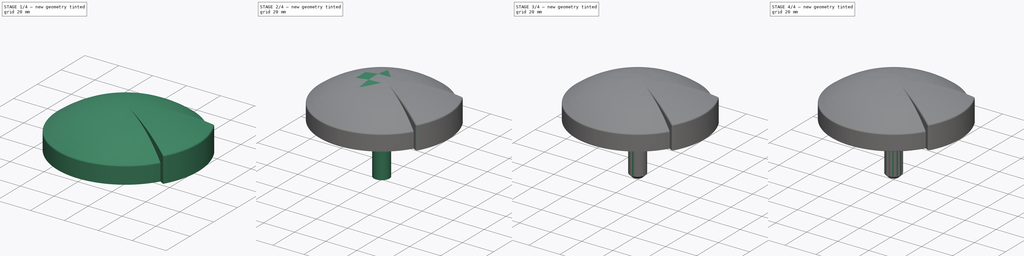
[diagram: build sequence overview — one tinted view per stage of 4, left to right]
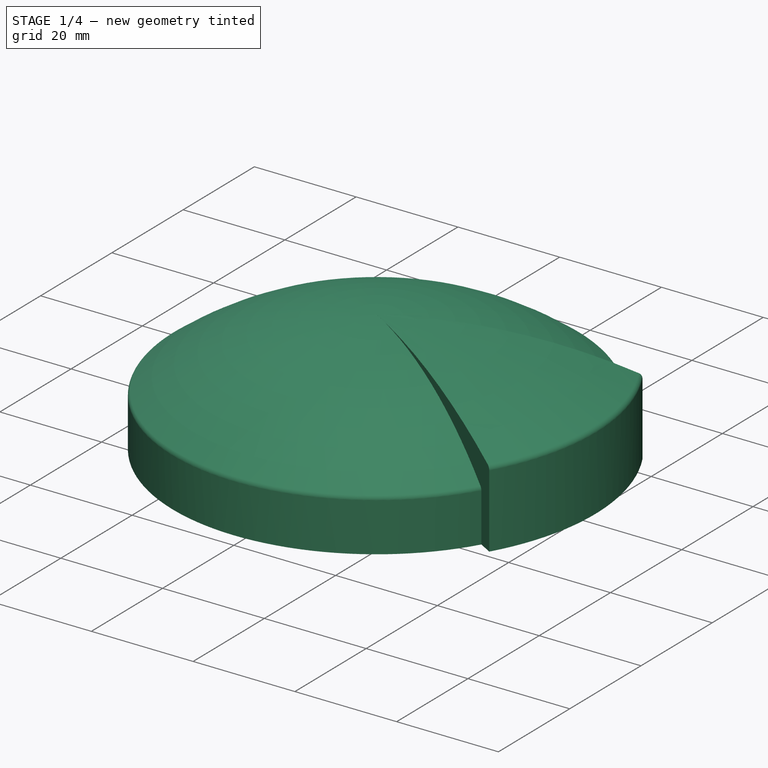
[diagram: stage 1 of 4 — iso view after this stage's code; geometry added in this stage tinted green]
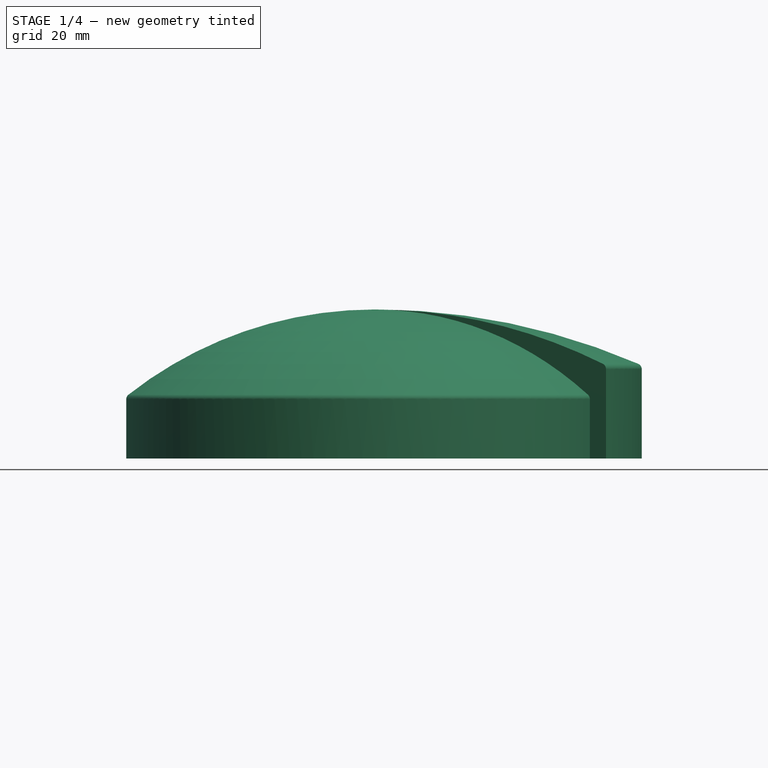
[diagram: stage 1 of 4 — front view after this stage's code; geometry added in this stage tinted green]
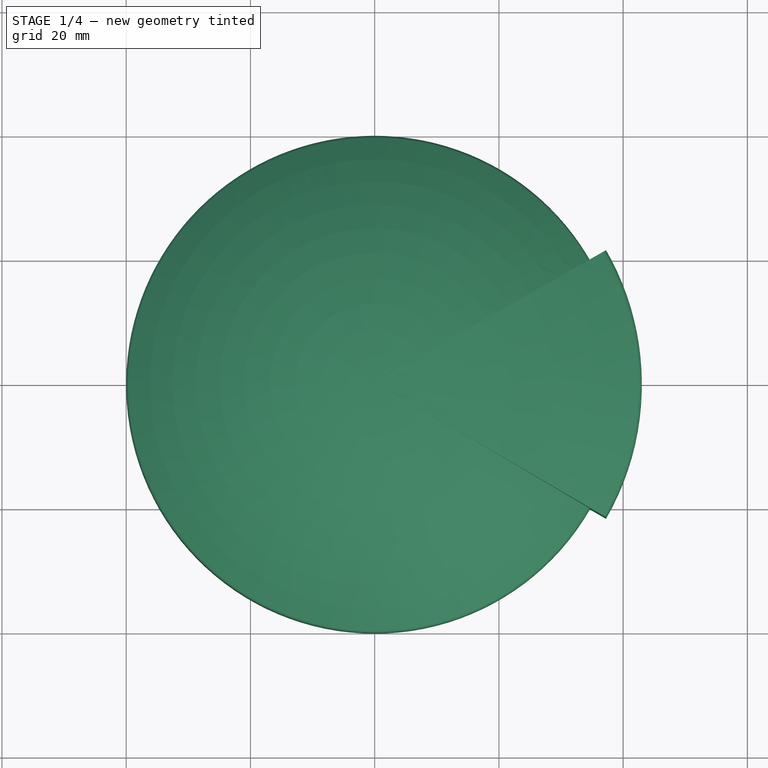
[diagram: stage 1 of 4 — top view after this stage's code; geometry added in this stage tinted green]
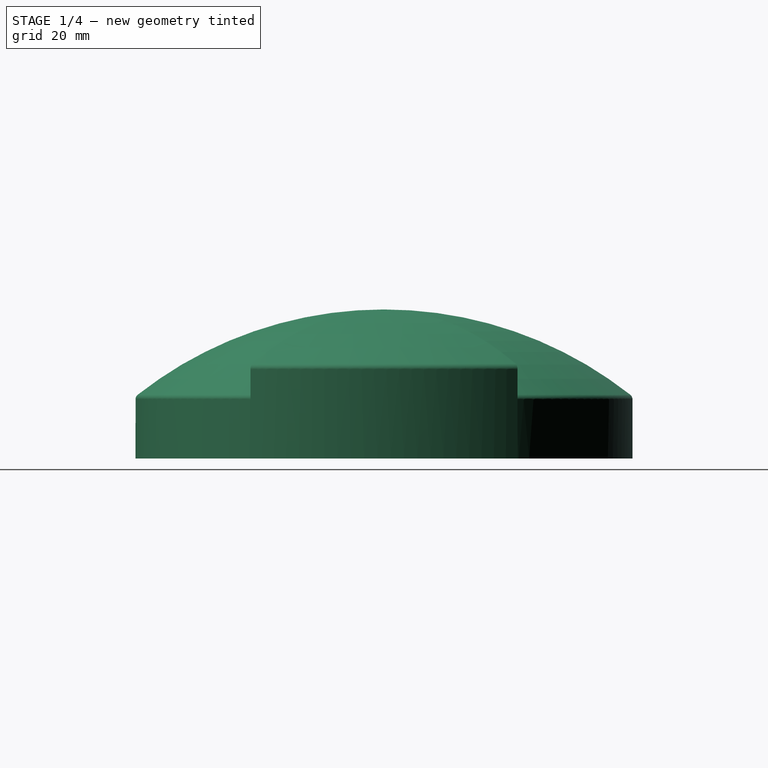
[diagram: stage 1 of 4 — right view after this stage's code; geometry added in this stage tinted green]
FCSTD DOCUMENT  (FreeCAD 1.0R39319 (Git))
Label: Badarmatur
License: All rights reserved
LicenseURL: https://en.wikipedia.org/wiki/All_rights_reserved
objects: Sketcher::SketchObject×5, PartDesign::Fillet×4, PartDesign::Revolution×3, PartDesign::Groove×1, PartDesign::Chamfer×1, PartDesign::Pocket×1, PartDesign::PolarPattern×1, PartDesign::Body×1
note: 43 computed .brp shape members not serialized (recipe doc carries the construction recipe); baked Part::Feature solids carry a one-line shape summary decoded from their .brp

FEATURE [Sketcher::SketchObject] Sketch
  ArcFitTolerance = 1e-06
  AttachmentSupport = -> [XZ_Plane]
  FullyConstrained = true
  MakeInternals = false
  MapMode = 5
  Placement = pos=(0,0,0) rot=(1,0,0;1.5708rad)
  sketch-geometry (4):
    g0: LineSegment StartX=3.9e-15 StartY=24 StartZ=0 EndX=3.9e-15 EndY=0 EndZ=0
    g1: LineSegment StartX=3.9e-15 StartY=0 StartZ=0 EndX=40 EndY=0 EndZ=0
    g2: LineSegment StartX=40 StartY=0 StartZ=0 EndX=40 EndY=10 EndZ=0
    g3: ArcOfCircle CenterX=0 CenterY=-40.1429 CenterZ=0 NormalX=0 NormalY=0 NormalZ=1 AngleXU=0 Radius=64.1429 StartAngle=0.897447 EndAngle=1.5708
  constraints (12):
    c: Coincident(g0,g1)
    c: Coincident(g1,g2)
    c: Horizontal(g1)
    c: Vertical(g0)
    c: Vertical(g2)
    c: Coincident(g0,g-1)
    c: DistanceX(g1,g1) = 40
    c: DistanceY(g2,g2) = 10
    c: DistanceY(g0,g0) = 24
    c: Coincident(g3,g2)
    c: Coincident(g0,g3)
    c: Perpendicular(g3,g0)
FEATURE [Sketcher::SketchObject] Sketch001
  ArcFitTolerance = 1e-06
  AttachmentSupport = -> [XZ_Plane]
  FullyConstrained = true
  MakeInternals = false
  MapMode = 5
  Placement = pos=(0,0,0) rot=(1,0,0;1.5708rad)
  sketch-geometry (4):
    g0: LineSegment StartX=43 StartY=15 StartZ=0 EndX=43 EndY=0 EndZ=0
    g1: LineSegment StartX=43 StartY=0 StartZ=0 EndX=0 EndY=0 EndZ=0
    g2: LineSegment StartX=0 StartY=0 StartZ=0 EndX=0 EndY=24 EndZ=0
    g3: ArcOfCircle CenterX=0 CenterY=-83.2222 CenterZ=0 NormalX=0 NormalY=0 NormalZ=1 AngleXU=0 Radius=107.222 StartAngle=1.15815 EndAngle=1.5708
  constraints (12):
    c: Coincident(g0,g1)
    c: Horizontal(g1)
    c: Coincident(g1,g2)
    c: Coincident(g1,g-1)
    c: Vertical(g0)
    c: Vertical(g2)
    c: DistanceX(g1,g1) = 43
    c: DistanceY(g2,g2) = 24
    c: DistanceY(g0,g0) = 15
    c: Coincident(g0,g3)
    c: Coincident(g2,g3)
    c: Perpendicular(g3,g2)
FEATURE [PartDesign::Revolution] Revolution
  Angle = 360
  Angle2 = 60
  Axis = (0,2e-16,1)
  Base = (0,0,0)
  Placement = pos=(0,0,0) rot=(1,0,0;1.5708rad)
  Profile = -> Sketch
  ReferenceAxis = -> Sketch [V_Axis]
  Refine = true
  Reversed = true
  Suppressed = false
  Type = 0
FEATURE [PartDesign::Revolution] Revolution001
  Angle = 60
  Angle2 = 60
  Axis = (0,2e-16,1)
  Base = (0,0,0)
  BaseFeature = -> Revolution
  Midplane = true
  Placement = pos=(0,0,0) rot=(1,0,0;1.5708rad)
  Profile = -> Sketch001
  ReferenceAxis = -> Sketch001 [V_Axis]
  Refine = true
  Reversed = true
  Suppressed = false
  Type = 0
FEATURE [PartDesign::Fillet] Fillet
  Base = -> Revolution001 [Edge15,Edge1]
  BaseFeature = -> Revolution001
  Placement = pos=(0,0,0) rot=(1,0,0;1.5708rad)
  Radius = 1
  Refine = true
  SupportTransform = false
  Suppressed = false
  UseAllEdges = false
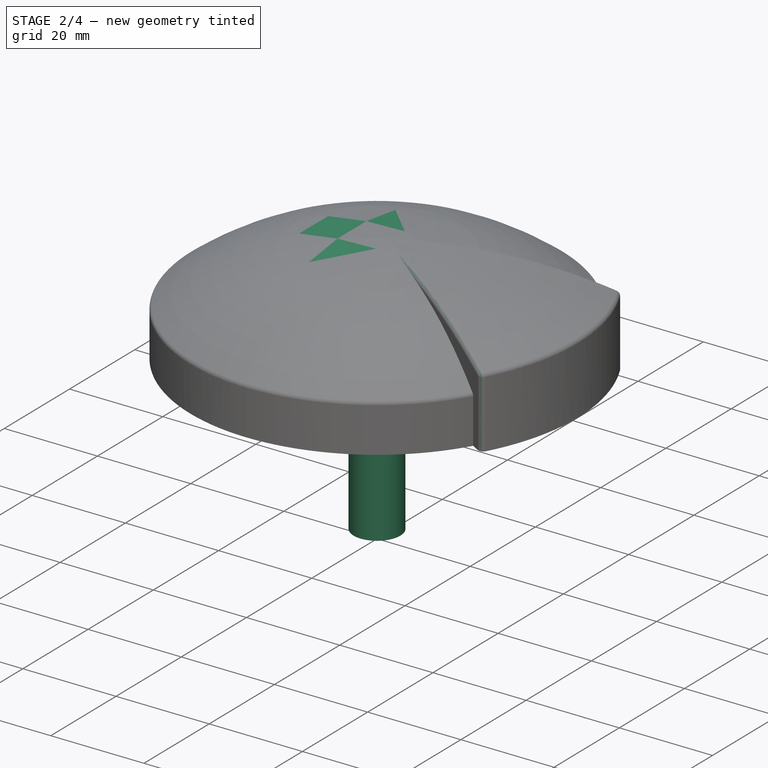
[diagram: stage 2 of 4 — iso view after this stage's code; geometry added in this stage tinted green]
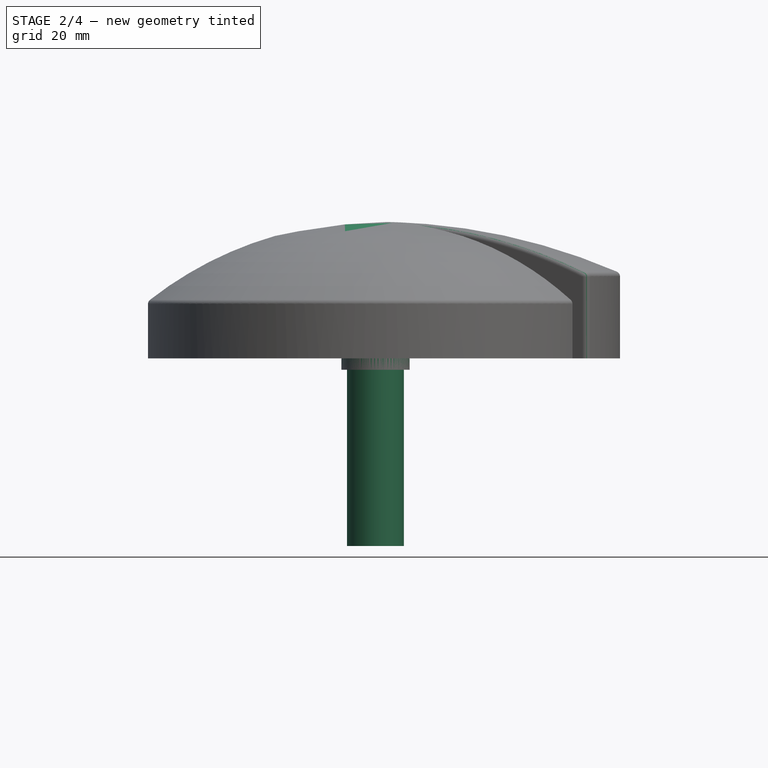
[diagram: stage 2 of 4 — front view after this stage's code; geometry added in this stage tinted green]
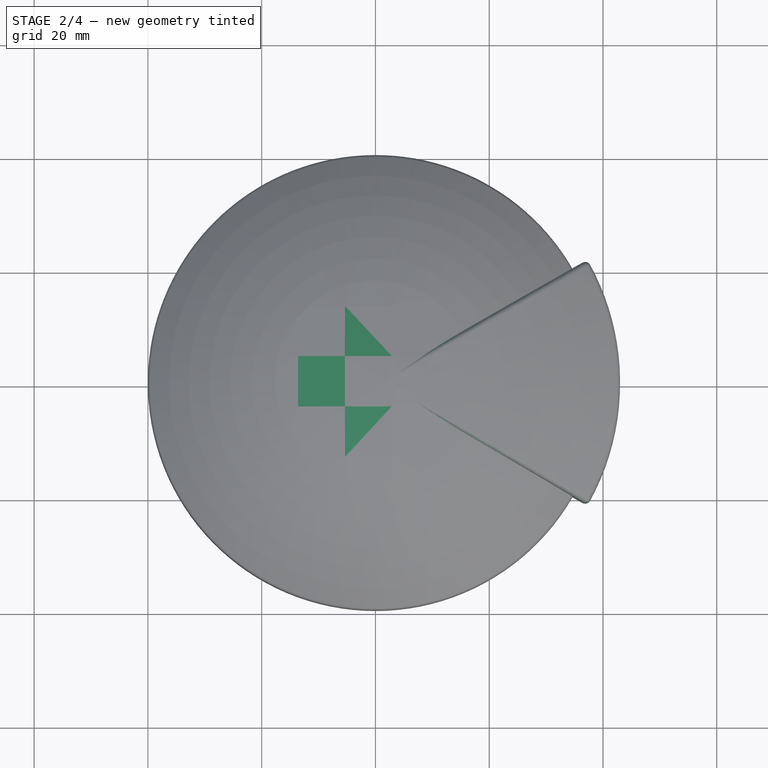
[diagram: stage 2 of 4 — top view after this stage's code; geometry added in this stage tinted green]
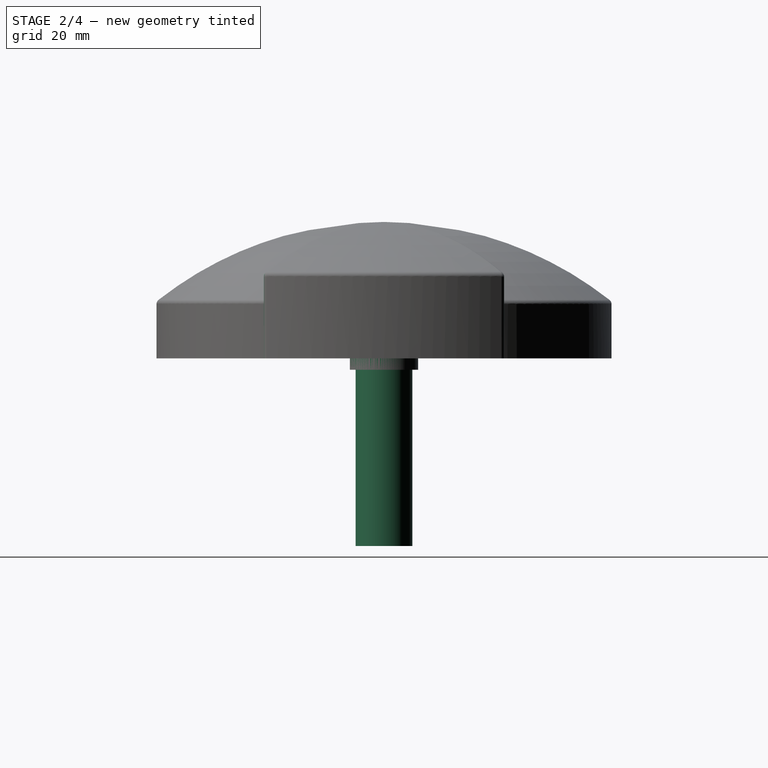
[diagram: stage 2 of 4 — right view after this stage's code; geometry added in this stage tinted green]
FEATURE [PartDesign::Fillet] Fillet001
  Base = -> Fillet [Edge1,Edge4]
  BaseFeature = -> Fillet
  Placement = pos=(0,0,0) rot=(1,0,0;1.5708rad)
  Radius = 1
  Refine = true
  SupportTransform = false
  Suppressed = false
  UseAllEdges = false
FEATURE [Sketcher::SketchObject] Sketch002
  ArcFitTolerance = 1e-06
  AttachmentSupport = -> [XZ_Plane]
  FullyConstrained = true
  MakeInternals = false
  MapMode = 5
  Placement = pos=(0,0,0) rot=(1,0,0;1.5708rad)
  expr: Constraints[106] = Sketch.Constraints[6]
  expr: Constraints[107] = Sketch.Constraints[7]
  expr: Constraints[108] = Sketch.Constraints[8]
  expr: Constraints[17] = Sketch.Constraints[6]
  expr: Constraints[18] = Sketch.Constraints[7]
  expr: Constraints[27] = Sketch.Constraints[6]
  expr: Constraints[28] = Sketch.Constraints[7]
  expr: Constraints[37] = Sketch.Constraints[6]
  expr: Constraints[38] = Sketch.Constraints[7]
  expr: Constraints[48] = Sketch.Constraints[6]
  expr: Constraints[49] = Sketch.Constraints[7]
  expr: Constraints[58] = Sketch.Constraints[6]
  expr: Constraints[59] = Sketch.Constraints[7]
  expr: Constraints[60] = Sketch.Constraints[8]
  expr: Constraints[6] = Sketch.Constraints[6]
  expr: Constraints[70] = Sketch.Constraints[6]
  expr: Constraints[71] = Sketch.Constraints[7]
  expr: Constraints[72] = Sketch.Constraints[8]
  expr: Constraints[7] = Sketch.Constraints[7]
  expr: Constraints[82] = Sketch.Constraints[6]
  expr: Constraints[83] = Sketch.Constraints[7]
  expr: Constraints[84] = Sketch.Constraints[8]
  expr: Constraints[8] = Sketch.Constraints[8]
  expr: Constraints[94] = Sketch.Constraints[6]
  expr: Constraints[95] = Sketch.Constraints[7]
  expr: Constraints[96] = Sketch.Constraints[8]
  sketch-geometry (46):
    g0: LineSegment [constr] StartX=0 StartY=24 StartZ=0 EndX=0 EndY=0 EndZ=0
    g1: LineSegment [constr] StartX=0 StartY=0 StartZ=0 EndX=40 EndY=0 EndZ=0
    g2: LineSegment [constr] StartX=40 StartY=0 StartZ=0 EndX=40 EndY=10 EndZ=0
    g3: ArcOfCircle [constr] CenterX=0 CenterY=-40.1429 CenterZ=0 NormalX=0 NormalY=0 NormalZ=1 AngleXU=0 Radius=64.1429 StartAngle=0.897447 EndAngle=1.5708
    g4: LineSegment [constr] StartX=3.9e-15 StartY=24 StartZ=0 EndX=3.9e-15 EndY=0 EndZ=0
    g5: LineSegment [constr] StartX=3.9e-15 StartY=0 StartZ=0 EndX=40 EndY=0 EndZ=0
    g6: LineSegment [constr] StartX=40 StartY=0 StartZ=0 EndX=40 EndY=10 EndZ=0
    g7: ArcOfCircle [constr] CenterX=0 CenterY=-40.1429 CenterZ=0 NormalX=0 NormalY=0 NormalZ=1 AngleXU=0 Radius=64.1429 StartAngle=0.897447 EndAngle=1.5708
    g8: LineSegment [constr] StartX=3.9e-15 StartY=24 StartZ=0 EndX=3.9e-15 EndY=0 EndZ=0
    g9: LineSegment [constr] StartX=3.9e-15 StartY=0 StartZ=0 EndX=40 EndY=0 EndZ=0
    g10: LineSegment [constr] StartX=40 StartY=0 StartZ=0 EndX=40 EndY=10 EndZ=0
    g11: ArcOfCircle [constr] CenterX=0 CenterY=-40.1429 CenterZ=0 NormalX=0 NormalY=0 NormalZ=1 AngleXU=0 Radius=64.1429 StartAngle=0.897447 EndAngle=1.5708
    g12: LineSegment [constr] StartX=3.9e-15 StartY=24 StartZ=0 EndX=3.9e-15 EndY=0 EndZ=0
    g13: LineSegment [constr] StartX=3.9e-15 StartY=0 StartZ=0 EndX=40 EndY=0 EndZ=0
    g14: LineSegment [constr] StartX=40 StartY=0 StartZ=0 EndX=40 EndY=10 EndZ=0
    g15: ArcOfCircle [constr] CenterX=0 CenterY=-40.1429 CenterZ=0 NormalX=0 NormalY=0 NormalZ=1 AngleXU=0 Radius=64.1429 StartAngle=0.897447 EndAngle=1.5708
    g16: LineSegment [constr] StartX=0 StartY=24 StartZ=0 EndX=0 EndY=0 EndZ=0
    g17: LineSegment [constr] StartX=0 StartY=0 StartZ=0 EndX=40 EndY=0 EndZ=0
    g18: LineSegment [constr] StartX=40 StartY=0 StartZ=0 EndX=40 EndY=10 EndZ=0
    g19: ArcOfCircle [constr] CenterX=0 CenterY=-40.1429 CenterZ=0 NormalX=0 NormalY=0 NormalZ=1 AngleXU=0 Radius=64.1429 StartAngle=0.897447 EndAngle=1.5708
    g20: LineSegment [constr] StartX=3.9e-15 StartY=24 StartZ=0 EndX=3.9e-15 EndY=0 EndZ=0
    g21: LineSegment [constr] StartX=3.9e-15 StartY=0 StartZ=0 EndX=40 EndY=0 EndZ=0
    g22: LineSegment [constr] StartX=40 StartY=0 StartZ=0 EndX=40 EndY=10 EndZ=0
    g23: ArcOfCircle [constr] CenterX=0 CenterY=-40.1429 CenterZ=0 NormalX=0 NormalY=0 NormalZ=1 AngleXU=0 Radius=64.1429 StartAngle=0.897447 EndAngle=1.5708
    g24: LineSegment [constr] StartX=3.9e-15 StartY=24 StartZ=0 EndX=3.9e-15 EndY=0 EndZ=0
    g25: LineSegment [constr] StartX=3.9e-15 StartY=0 StartZ=0 EndX=40 EndY=0 EndZ=0
    g26: LineSegment [constr] StartX=40 StartY=0 StartZ=0 EndX=40 EndY=10 EndZ=0
    g27: ArcOfCircle [constr] CenterX=0 CenterY=-40.1429 CenterZ=0 NormalX=0 NormalY=0 NormalZ=1 AngleXU=0 Radius=64.1429 StartAngle=0.897447 EndAngle=1.5708
    g28: LineSegment [constr] StartX=3.9e-15 StartY=24 StartZ=0 EndX=3.9e-15 EndY=0 EndZ=0
    g29: LineSegment [constr] StartX=3.9e-15 StartY=0 StartZ=0 EndX=40 EndY=0 EndZ=0
    g30: LineSegment [constr] StartX=40 StartY=0 StartZ=0 EndX=40 EndY=10 EndZ=0
    g31: ArcOfCircle [constr] CenterX=0 CenterY=-40.1429 CenterZ=0 NormalX=0 NormalY=0 NormalZ=1 AngleXU=0 Radius=64.1429 StartAngle=0.897447 EndAngle=1.5708
    g32: LineSegment [constr] StartX=3.9e-15 StartY=24 StartZ=0 EndX=3.9e-15 EndY=0 EndZ=0
    g33: LineSegment [constr] StartX=3.9e-15 StartY=0 StartZ=0 EndX=40 EndY=0 EndZ=0
    g34: LineSegment [constr] StartX=40 StartY=0 StartZ=0 EndX=40 EndY=10 EndZ=0
    g35: ArcOfCircle [constr] CenterX=0 CenterY=-40.1429 CenterZ=0 NormalX=0 NormalY=0 NormalZ=1 AngleXU=0 Radius=64.1429 StartAngle=0.897447 EndAngle=1.5708
    g36: LineSegment [constr] StartX=3.9e-15 StartY=24 StartZ=0 EndX=3.9e-15 EndY=0 EndZ=0
    g37: LineSegment [constr] StartX=3.9e-15 StartY=0 StartZ=0 EndX=40 EndY=0 EndZ=0
    g38: LineSegment [constr] StartX=40 StartY=0 StartZ=0 EndX=40 EndY=10 EndZ=0
    g39: ArcOfCircle [constr] CenterX=0 CenterY=-40.1429 CenterZ=0 NormalX=0 NormalY=0 NormalZ=1 AngleXU=0 Radius=64.1429 StartAngle=0.897447 EndAngle=1.5708
    g40: LineSegment StartX=0 StartY=0 StartZ=0 EndX=-7.3e-15 EndY=20.5 EndZ=0
    g41: ArcOfCircle [constr] CenterX=0 CenterY=-40.1429 CenterZ=0 NormalX=0 NormalY=0 NormalZ=1 AngleXU=0 Radius=60.6429 StartAngle=0.885096 EndAngle=1.5708
    g42: LineSegment [constr] StartX=38.4 StartY=6.79323 StartZ=0 EndX=38.4 EndY=0 EndZ=0
    g43: LineSegment StartX=38.4 StartY=0 StartZ=0 EndX=0 EndY=0 EndZ=0
    g44: LineSegment StartX=38.4 StartY=0 StartZ=0 EndX=22.0513 EndY=16.3487 EndZ=0
    g45: ArcOfCircle CenterX=2.4e-15 CenterY=-40.1429 CenterZ=0 NormalX=0 NormalY=0 NormalZ=1 AngleXU=0 Radius=60.6429 StartAngle=1.19864 EndAngle=1.5708
  constraints (132):
    c: Coincident(g0,g1)
    c: Coincident(g1,g2)
    c: Horizontal(g1)
    c: Vertical(g0)
    c: Vertical(g2)
    c: Coincident(g0,g-1)
    c: DistanceX(g1,g1) = 40
    c: DistanceY(g2,g2) = 10
    c: DistanceY(g0,g0) = 24
    c: Coincident(g3,g2)
    c: Coincident(g0,g3)
    c: Coincident(g4,g5)
    c: Coincident(g5,g6)
    c: Horizontal(g5)
    c: Vertical(g4)
    c: Vertical(g6)
    c: Coincident(g4,g-1)
    c: DistanceX(g5,g5) = 40
    c: DistanceY(g6,g6) = 10
    c: Coincident(g7,g6)
    c: Coincident(g4,g7)
    c: Coincident(g8,g9)
    c: Coincident(g9,g10)
    c: Horizontal(g9)
    c: Vertical(g8)
    c: Vertical(g10)
    c: Coincident(g8,g-1)
    c: DistanceX(g9,g9) = 40
    c: DistanceY(g10,g10) = 10
    c: Coincident(g11,g10)
    c: Coincident(g8,g11)
    c: Coincident(g12,g13)
    c: Coincident(g13,g14)
    c: Horizontal(g13)
    c: Vertical(g12)
    c: Vertical(g14)
    c: Coincident(g12,g-1)
    c: DistanceX(g13,g13) = 40
    c: DistanceY(g14,g14) = 10
    c: Coincident(g15,g14)
    c: Coincident(g12,g15)
    c: Perpendicular(g15,g12)
    c: Coincident(g16,g17)
    c: Coincident(g17,g18)
    c: Horizontal(g17)
    c: Vertical(g16)
    c: Vertical(g18)
    c: Coincident(g16,g-1)
    c: DistanceX(g17,g17) = 40
    c: DistanceY(g18,g18) = 10
    c: Coincident(g19,g18)
    c: Coincident(g16,g19)
    c: Coincident(g20,g21)
    c: Coincident(g21,g22)
    c: Horizontal(g21)
    c: Vertical(g20)
    c: Vertical(g22)
    c: Coincident(g20,g-1)
    c: DistanceX(g21,g21) = 40
    c: DistanceY(g22,g22) = 10
    c: DistanceY(g20,g20) = 24
    c: Coincident(g23,g22)
    c: Coincident(g20,g23)
    c: Perpendicular(g23,g20)
    c: Coincident(g24,g25)
    c: Coincident(g25,g26)
    c: Horizontal(g25)
    c: Vertical(g24)
    c: Vertical(g26)
    c: Coincident(g24,g-1)
    c: DistanceX(g25,g25) = 40
    c: DistanceY(g26,g26) = 10
    c: DistanceY(g24,g24) = 24
    c: Coincident(g27,g26)
    c: Coincident(g24,g27)
    c: Perpendicular(g27,g24)
    c: Coincident(g28,g29)
    c: Coincident(g29,g30)
    c: Horizontal(g29)
    c: Vertical(g28)
    c: Vertical(g30)
    c: Coincident(g28,g-1)
    c: DistanceX(g29,g29) = 40
    c: DistanceY(g30,g30) = 10
    c: DistanceY(g28,g28) = 24
    c: Coincident(g31,g30)
    c: Coincident(g28,g31)
    c: Perpendicular(g31,g28)
    c: Coincident(g32,g33)
    c: Coincident(g33,g34)
    c: Horizontal(g33)
    c: Vertical(g32)
    c: Vertical(g34)
    c: Coincident(g32,g-1)
    c: DistanceX(g33,g33) = 40
    c: DistanceY(g34,g34) = 10
    c: DistanceY(g32,g32) = 24
    c: Coincident(g35,g34)
    c: Coincident(g32,g35)
    c: Perpendicular(g35,g32)
    c: Coincident(g36,g37)
    c: Coincident(g37,g38)
    c: Horizontal(g37)
    c: Vertical(g36)
    c: Vertical(g38)
    c: Coincident(g36,g-1)
    c: DistanceX(g37,g37) = 40
    c: DistanceY(g38,g38) = 10
    c: DistanceY(g36,g36) = 24
    c: Coincident(g39,g38)
    c: Coincident(g36,g39)
    c: Perpendicular(g39,g36)
    c: Perpendicular(g40,g41) = 1.5708
    c: Coincident(g41,g42)
    c: Vertical(g42)
    c: Coincident(g42,g43)
    c: Coincident(g43,g40)
    c: Horizontal(g43)
    c: Coincident(g0,g40)
    c: Distance(g40,g0) = 3.5
    c: Distance(g2,g42) = 1.6
    c: Coincident(g3,g7)
    c: Coincident(g3,g11)
    c: Coincident(g3,g15)
    c: Coincident(g3,g19)
    c: Coincident(g3,g41)
    c: Coincident(g44,g42)
    c: PointOnObject(g44,g41)
    c: Angle(g44,g-1) = 0.785398
    c: Coincident(g40,g45)
    c: Coincident(g44,g45)
    c: Equal(g41,g45)
FEATURE [PartDesign::Groove] Groove
  Angle = 360
  Angle2 = 60
  Axis = (0,2e-16,1)
  Base = (0,0,0)
  BaseFeature = -> Fillet001
  Placement = pos=(0,0,0) rot=(1,0,0;1.5708rad)
  Profile = -> Sketch002
  ReferenceAxis = -> Sketch002 [V_Axis]
  Refine = true
  Suppressed = false
  Type = 0
FEATURE [Sketcher::SketchObject] Sketch003
  ArcFitTolerance = 1e-06
  AttachmentSupport = -> [XZ_Plane]
  ExternalGeometry = -> [Groove]
  FullyConstrained = true
  MakeInternals = false
  MapMode = 5
  Placement = pos=(0,0,0) rot=(1,0,0;1.5708rad)
  sketch-geometry (12):
    g0: LineSegment StartX=6 StartY=20.5 StartZ=0 EndX=6 EndY=7 EndZ=0
    g1: LineSegment StartX=6 StartY=7 StartZ=0 EndX=5 EndY=7 EndZ=0
    g2: LineSegment StartX=5 StartY=7 StartZ=0 EndX=5 EndY=4 EndZ=0
    g3: LineSegment StartX=5 StartY=4 StartZ=0 EndX=6 EndY=4 EndZ=0
    g4: LineSegment StartX=6 StartY=4 StartZ=0 EndX=6 EndY=-2 EndZ=0
    g5: LineSegment StartX=6 StartY=-2 StartZ=0 EndX=5 EndY=-2 EndZ=0
    g6: LineSegment StartX=5 StartY=-2 StartZ=0 EndX=5 EndY=-33 EndZ=0
    g7: LineSegment StartX=5 StartY=-33 StartZ=0 EndX=0 EndY=-33 EndZ=0
    g8: LineSegment StartX=0 StartY=-33 StartZ=0 EndX=0 EndY=20.5 EndZ=0
    g9: LineSegment StartX=0 StartY=20.5 StartZ=0 EndX=6 EndY=20.5 EndZ=0
    g10: GeomPoint X=-5 Y=-33 Z=0
    g11: GeomPoint X=-6 Y=-2 Z=0
  constraints (31):
    c: Vertical(g0)
    c: Coincident(g0,g1)
    c: Horizontal(g1)
    c: Coincident(g1,g2)
    c: Vertical(g2)
    c: Coincident(g2,g3)
    c: Horizontal(g3)
    c: Coincident(g3,g4)
    c: Coincident(g4,g5)
    c: Coincident(g5,g6)
    c: Vertical(g6)
    c: Coincident(g7,g8)
    c: Coincident(g8,g9)
    c: Coincident(g9,g0)
    c: Horizontal(g9)
    c: Vertical(g4)
    c: Vertical(g8)
    c: Horizontal(g7)
    c: Horizontal(g5)
    c: DistanceY(g7,g-1) = 33
    c: Coincident(g6,g7)
    c: Distance(g6,g6) = 31
    c: Distance(g4,g4) = 6
    c: Symmetric(g11,g4,g-2)
    c: Symmetric(g10,g6,g-2)
    c: Distance(g10,g6) = 10
    c: Distance(g11,g4) = 12
    c: PointOnObject(g2,g6)
    c: PointOnObject(g0,g4)
    c: DistanceY(g2,g2) = 3
    c: Coincident(g8,g-3)
FEATURE [PartDesign::Revolution] Revolution002
  Angle = 360
  Angle2 = 60
  Axis = (0,2e-16,1)
  Base = (0,0,0)
  BaseFeature = -> Groove
  Placement = pos=(0,0,0) rot=(1,0,0;1.5708rad)
  Profile = -> Sketch003
  ReferenceAxis = -> Sketch003 [V_Axis]
  Refine = true
  Reversed = true
  Suppressed = false
  Type = 0
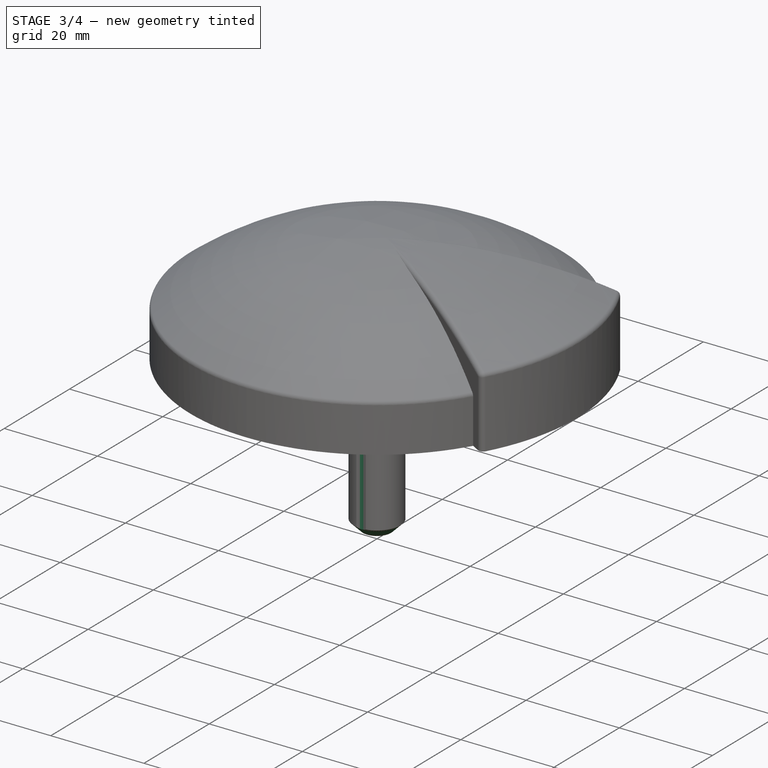
[diagram: stage 3 of 4 — iso view after this stage's code; geometry added in this stage tinted green]
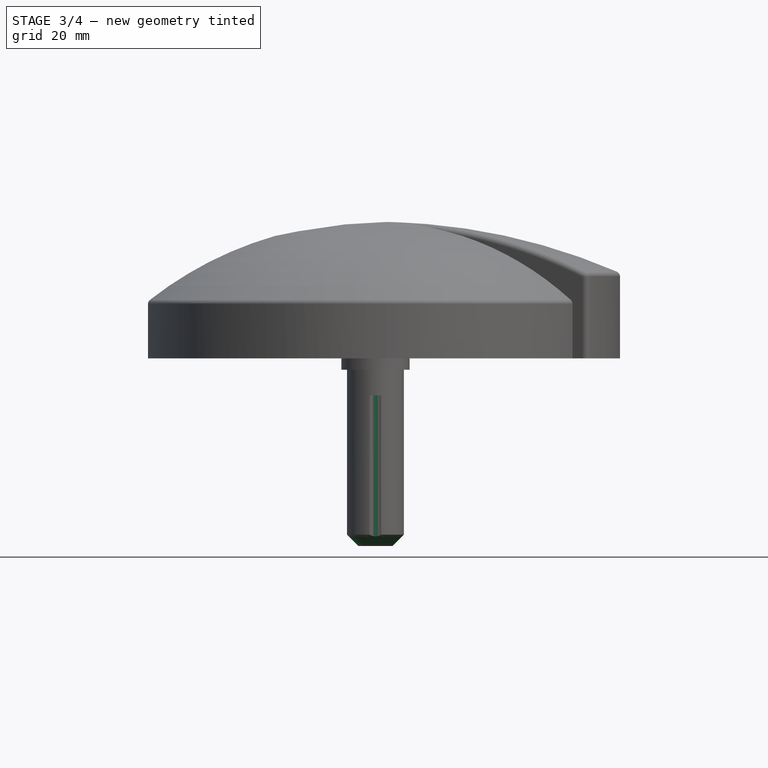
[diagram: stage 3 of 4 — front view after this stage's code; geometry added in this stage tinted green]
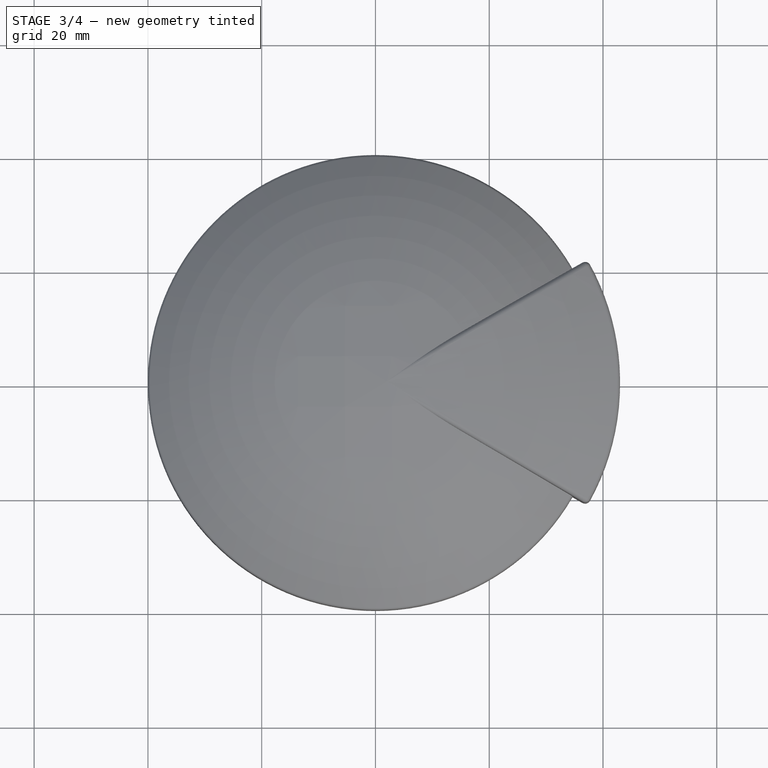
[diagram: stage 3 of 4 — top view after this stage's code; geometry added in this stage tinted green]
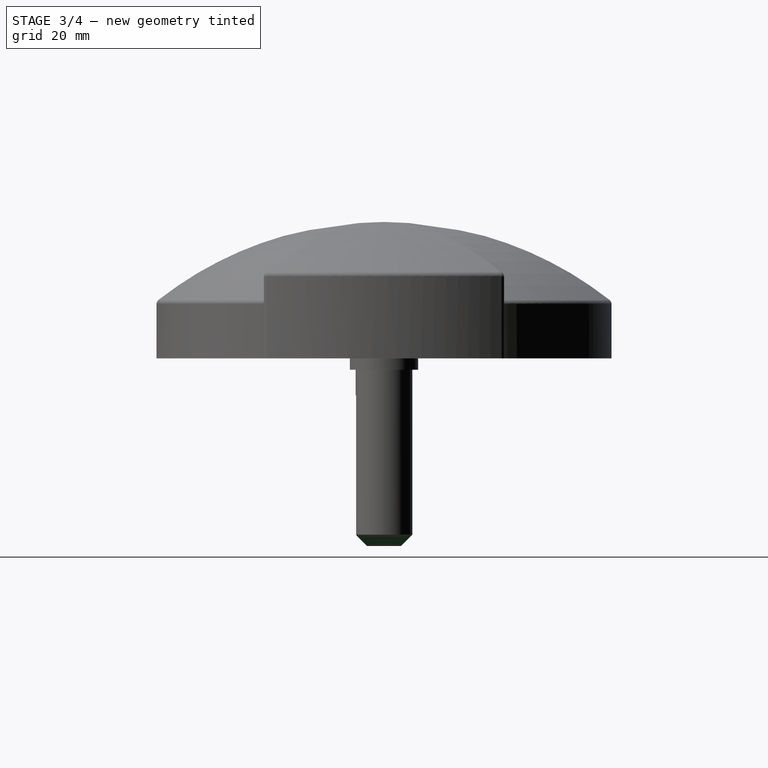
[diagram: stage 3 of 4 — right view after this stage's code; geometry added in this stage tinted green]
FEATURE [PartDesign::Chamfer] Chamfer
  Angle = 45
  Base = -> Revolution002 [Edge50]
  BaseFeature = -> Revolution002
  ChamferType = 0
  FlipDirection = false
  Placement = pos=(0,0,0) rot=(1,0,0;1.5708rad)
  Refine = true
  Size = 2
  Size2 = 1
  SupportTransform = false
  Suppressed = false
  UseAllEdges = false
FEATURE [Sketcher::SketchObject] Sketch004
  ArcFitTolerance = 1e-06
  AttachmentSupport = -> [Chamfer]
  ExternalGeometry = -> [Chamfer]
  FullyConstrained = true
  MakeInternals = false
  MapMode = 5
  Placement = pos=(0,-7.3e-15,-33) rot=(1,0,0;3.14159rad)
  sketch-geometry (4):
    g0: Circle CenterX=0 CenterY=7.31231 CenterZ=0 NormalX=0 NormalY=0 NormalZ=1 AngleXU=0 Radius=2.61231
    g1: LineSegment [constr] StartX=-1.21548 StartY=5 StartZ=0 EndX=1.21548 EndY=5 EndZ=0
    g2: LineSegment [constr] StartX=-1e-16 StartY=4.7 StartZ=0 EndX=-1e-16 EndY=5 EndZ=0
    g3: LineSegment [constr] StartX=-1 StartY=4.89898 StartZ=0 EndX=1 EndY=4.89898 EndZ=0
  constraints (14):
    c: PointOnObject(g0,g-2)
    c: PointOnObject(g1,g0)
    c: PointOnObject(g1,g0)
    c: Horizontal(g1)
    c: PointOnObject(g2,g0)
    c: Symmetric(g1,g1,g2)
    c: Vertical(g2)
    c: PointOnObject(g2,g-3)
    c: DistanceY(g2,g2) = 0.3
    c: PointOnObject(g3,g0)
    c: PointOnObject(g3,g0)
    c: Horizontal(g3)
    c: PointOnObject(g3,g-3)
    c: DistanceX(g3,g3) = 2
FEATURE [PartDesign::Pocket] Pocket
  BaseFeature = -> Chamfer
  Direction = (0,0,1)
  Length = 26.5
  Length2 = 5
  Placement = pos=(0,0,0) rot=(1,0,0;1.5708rad)
  Profile = -> Sketch004
  ReferenceAxis = -> Sketch004 [N_Axis]
  Refine = true
  Suppressed = false
  Type = 0
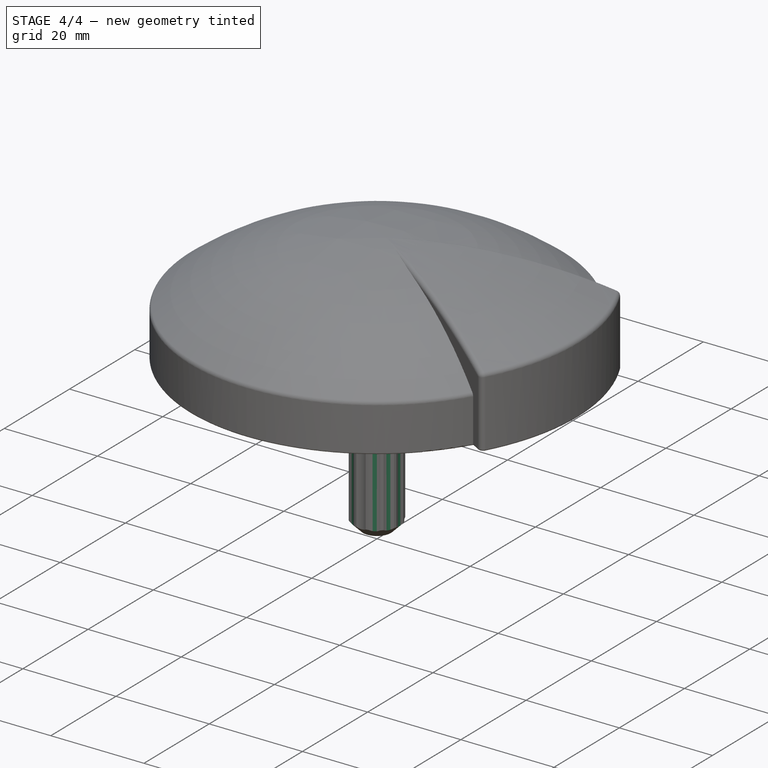
[diagram: stage 4 of 4 — iso view after this stage's code; geometry added in this stage tinted green]
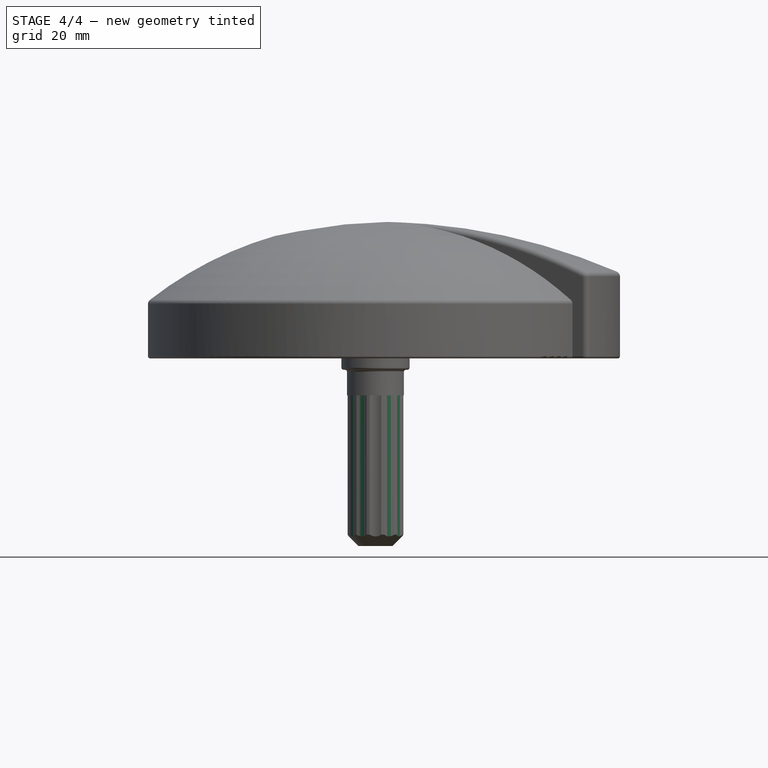
[diagram: stage 4 of 4 — front view after this stage's code; geometry added in this stage tinted green]
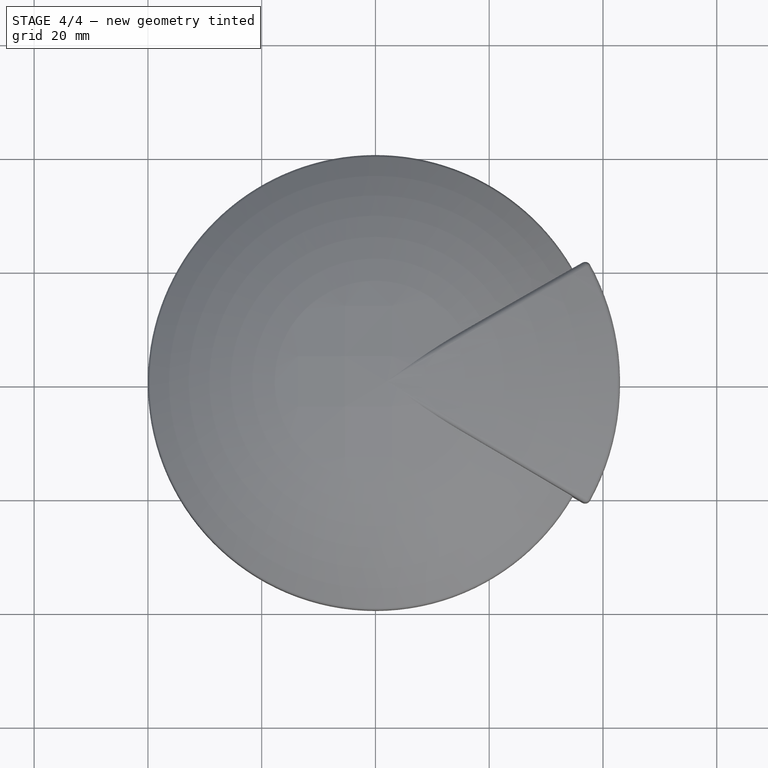
[diagram: stage 4 of 4 — top view after this stage's code; geometry added in this stage tinted green]
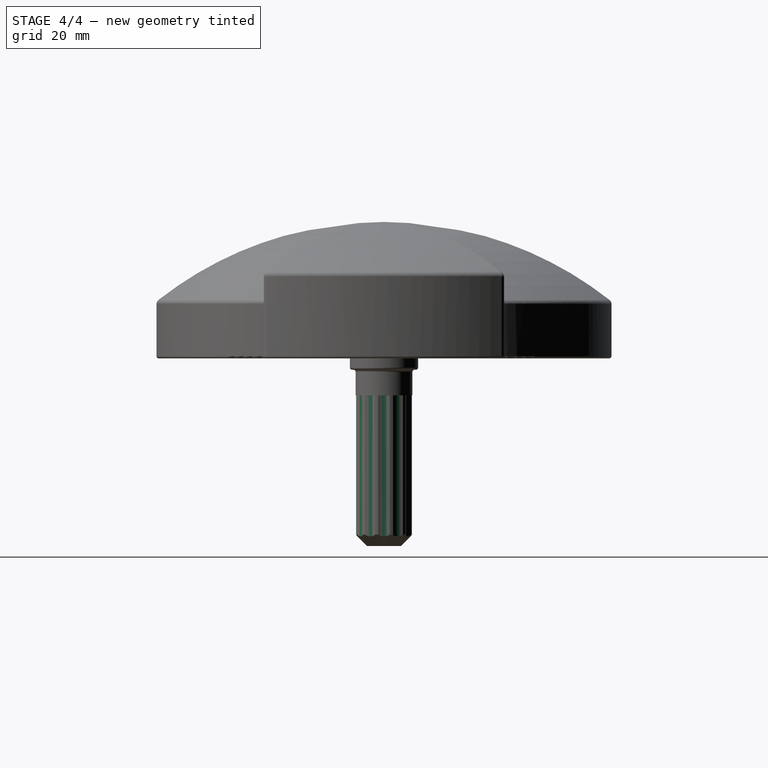
[diagram: stage 4 of 4 — right view after this stage's code; geometry added in this stage tinted green]
FEATURE [PartDesign::PolarPattern] PolarPattern
  Angle = 360
  Axis = -> Sketch004 [N_Axis]
  BaseFeature = -> Pocket
  Mode = 0
  Occurrences = 12
  Offset = 120
  Originals = -> [Pocket]
  Placement = pos=(0,0,0) rot=(1,0,0;1.5708rad)
  Refine = true
  Suppressed = false
  TransformMode = 0
FEATURE [PartDesign::Fillet] Fillet002
  Base = -> PolarPattern [Edge86]
  BaseFeature = -> PolarPattern
  Placement = pos=(0,0,0) rot=(1,0,0;1.5708rad)
  Radius = 5
  Refine = true
  SupportTransform = false
  Suppressed = false
  UseAllEdges = false
FEATURE [PartDesign::Fillet] Fillet003
  Base = -> Fillet002 [Face5,Face9,Edge38,Edge3,Face8]
  BaseFeature = -> Fillet002
  Placement = pos=(0,0,0) rot=(1,0,0;1.5708rad)
  Radius = 0.4
  Refine = true
  SupportTransform = false
  Suppressed = false
  UseAllEdges = false
FEATURE [PartDesign::Body] Body  label="Körper"
  AllowCompound = false
  Group = -> [Sketch,Sketch001,Revolution,Revolution001,Fillet,Fillet001,Sketch002,Groove,Sketch003,Revolution002,Chamfer,Sketch004,Pocket,PolarPattern,Fillet002,Fillet003]
  Origin = -> Origin
  Tip = -> Fillet003
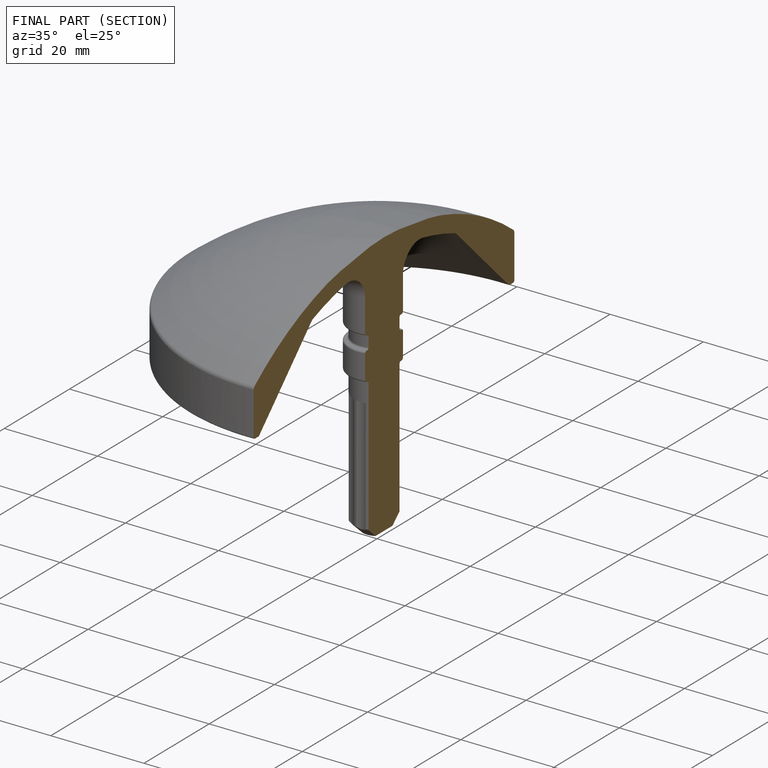
[diagram: finished part — half-section view (interior)]
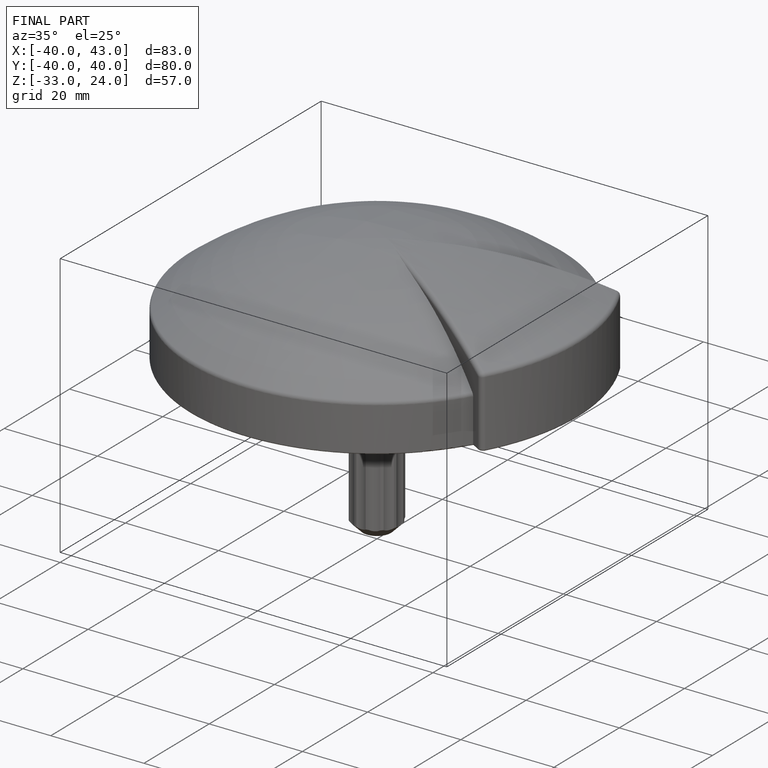
[diagram: finished part — iso view with bounding-box wireframe]
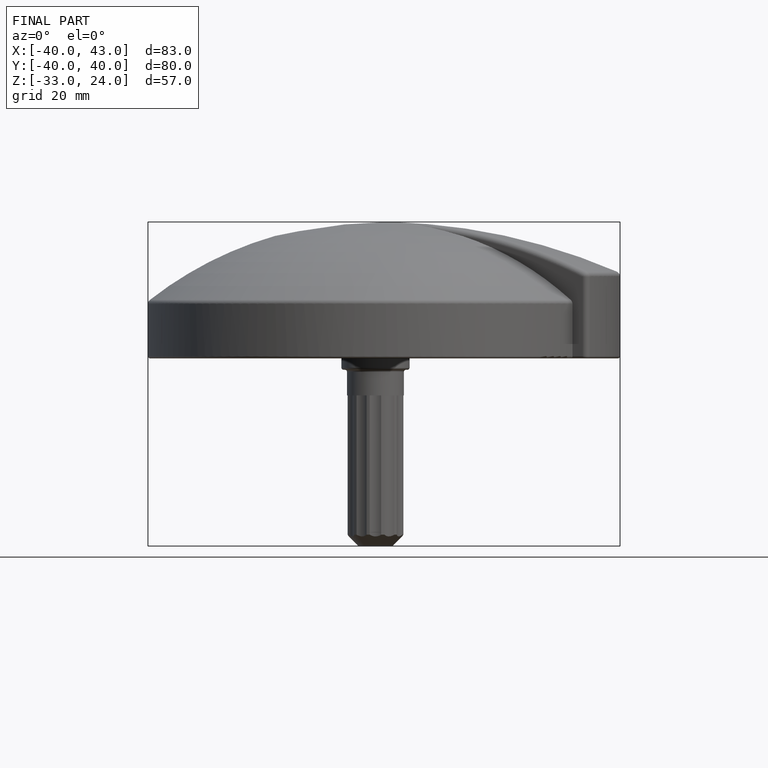
[diagram: finished part — front view with bounding-box wireframe]
